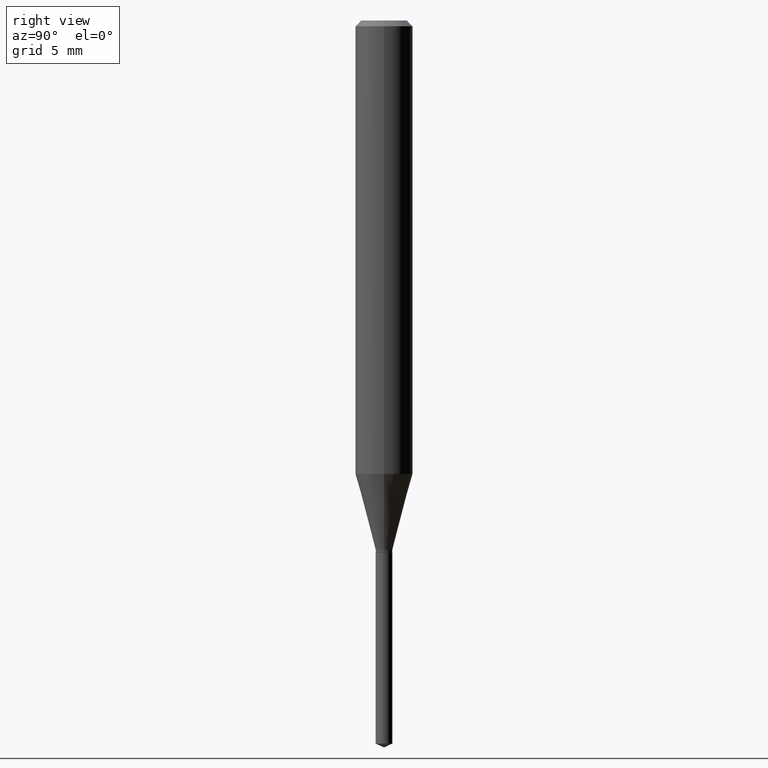
[diagram: clean part render]
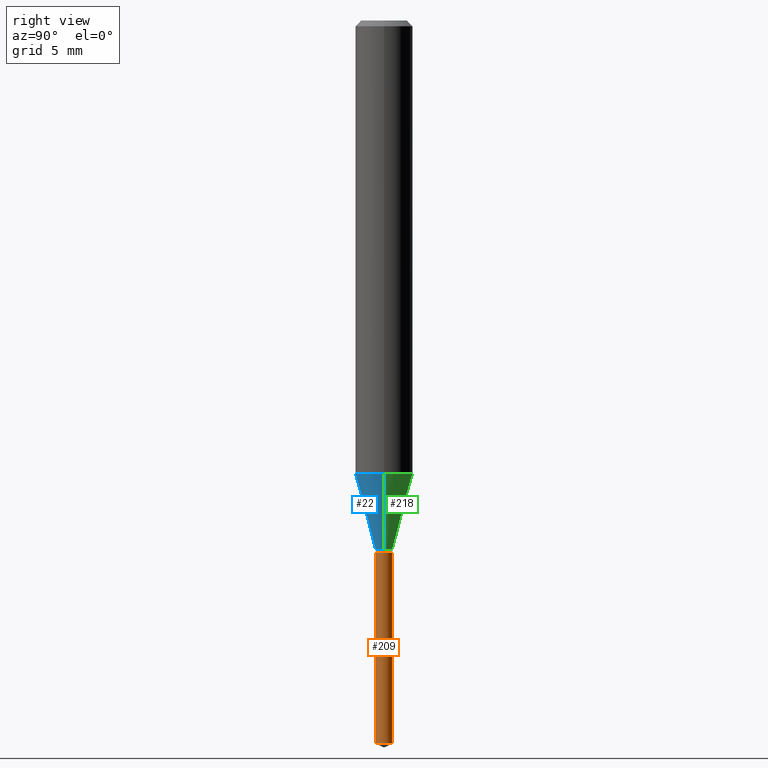
[diagram: same view with three faces highlighted in distinct colors, each labeled with its STEP entity id]
A machine part, right view with three faces highlighted in distinct colors.
Their STEP definitions:

[orange] entity #209 — the highlighted cylindrical surface (edge-blend (fillet) strip) has radius 0.4356 mm, axis along (-0, 0, 1).
#6 = ORIENTED_EDGE ( 'NONE', *, *, #64, .T. ) ;
#10 = VECTOR ( 'NONE', #247, 39.37007874015748143 ) ;
#18 = CARTESIAN_POINT ( 'NONE',  ( 3.639109590007979236E-29, -5.195682445244359530E-15, -1.488102823662641683 ) ) ;
#23 = CARTESIAN_POINT ( 'NONE',  ( 1.218580791828936073E-16, 0.01714999999999617525, -1.094499999999999806 ) ) ;
#25 = EDGE_CURVE ( 'NONE', #46, #85, #487, .T. ) ;
#46 = VERTEX_POINT ( 'NONE', #412 ) ;
#49 = DIRECTION ( 'NONE',  ( -2.445470214571802116E-29, 3.491479321953280158E-15, 1.000000000000000000 ) ) ;
#64 = EDGE_CURVE ( 'NONE', #357, #243, #136, .T. ) ;
#72 = AXIS2_PLACEMENT_3D ( 'NONE', #74, #380, #223 ) ;
#74 = CARTESIAN_POINT ( 'NONE',  ( 2.676565608369631794E-29, -3.821426325363822773E-15, -1.094499999999999806 ) ) ;
#78 = EDGE_LOOP ( 'NONE', ( #350, #6, #245, #112 ) ) ;
#80 = CYLINDRICAL_SURFACE ( 'NONE', #72, 0.01714999999999999858 ) ;
#82 = AXIS2_PLACEMENT_3D ( 'NONE', #280, #49, #346 ) ;
#85 = VERTEX_POINT ( 'NONE', #372 ) ;
#112 = ORIENTED_EDGE ( 'NONE', *, *, #25, .F. ) ;
#125 = AXIS2_PLACEMENT_3D ( 'NONE', #18, #237, #283 ) ;
#136 = LINE ( 'NONE', #367, #10 ) ;
#142 = FACE_OUTER_BOUND ( 'NONE', #78, .T. ) ;
#209 = ADVANCED_FACE ( 'NONE', ( #142 ), #80, .T. ) ;
#223 = DIRECTION ( 'NONE',  ( -6.982962677686266711E-15, -1.000000000000000000, 0.000000000000000000 ) ) ;
#234 = CIRCLE ( 'NONE', #82, 0.01714999999999999858 ) ;
#237 = DIRECTION ( 'NONE',  ( -2.445470214571802116E-29, 3.491479321953280158E-15, 1.000000000000000000 ) ) ;
#243 = VERTEX_POINT ( 'NONE', #23 ) ;
#245 = ORIENTED_EDGE ( 'NONE', *, *, #249, .F. ) ;
#247 = DIRECTION ( 'NONE',  ( -2.445470214571802396E-29, 3.491479321953280158E-15, 1.000000000000000000 ) ) ;
#249 = EDGE_CURVE ( 'NONE', #85, #243, #234, .T. ) ;
#250 = CARTESIAN_POINT ( 'NONE',  ( -1.197578099222926869E-16, -0.01715000000000382191, -1.094499999999999806 ) ) ;
#280 = CARTESIAN_POINT ( 'NONE',  ( 2.676565608369631794E-29, -3.821426325363822773E-15, -1.094499999999999806 ) ) ;
#283 = DIRECTION ( 'NONE',  ( -6.982962677686266711E-15, -1.000000000000000000, 0.000000000000000000 ) ) ;
#314 = EDGE_CURVE ( 'NONE', #46, #357, #409, .T. ) ;
#324 = CARTESIAN_POINT ( 'NONE',  ( 1.218580791828935333E-16, 0.01714999999999479788, -1.488102823662641683 ) ) ;
#346 = DIRECTION ( 'NONE',  ( -6.982962677686266711E-15, -1.000000000000000000, 0.000000000000000000 ) ) ;
#349 = VECTOR ( 'NONE', #408, 39.37007874015748143 ) ;
#350 = ORIENTED_EDGE ( 'NONE', *, *, #314, .T. ) ;
#357 = VERTEX_POINT ( 'NONE', #324 ) ;
#367 = CARTESIAN_POINT ( 'NONE',  ( 1.218580791828839191E-16, 0.01714999999999617525, -1.094499999999999806 ) ) ;
#372 = CARTESIAN_POINT ( 'NONE',  ( -1.197578099222926869E-16, -0.01715000000000382191, -1.094499999999999806 ) ) ;
#380 = DIRECTION ( 'NONE',  ( -2.445470214571802116E-29, 3.491479321953280158E-15, 1.000000000000000000 ) ) ;
#408 = DIRECTION ( 'NONE',  ( -2.445470214571802396E-29, 3.491479321953280158E-15, 1.000000000000000000 ) ) ;
#409 = CIRCLE ( 'NONE', #125, 0.01714999999999999858 ) ;
#412 = CARTESIAN_POINT ( 'NONE',  ( -1.197578099222830234E-16, -0.01715000000000518887, -1.488102823662641683 ) ) ;
#487 = LINE ( 'NONE', #250, #349 ) ;

[blue] entity #22 — the highlighted conical surface has half-angle 15 deg.
#2 = AXIS2_PLACEMENT_3D ( 'NONE', #216, #62, #364 ) ;
#22 = ADVANCED_FACE ( 'NONE', ( #375 ), #418, .T. ) ;
#24 = VECTOR ( 'NONE', #127, 39.37007874015747433 ) ;
#37 = CARTESIAN_POINT ( 'NONE',  ( 2.664093717458087237E-29, -3.803619770535721859E-15, -1.089399999999999924 ) ) ;
#55 = EDGE_LOOP ( 'NONE', ( #115, #340, #88, #276 ) ) ;
#62 = DIRECTION ( 'NONE',  ( -2.445468806185136597E-29, 3.491481338843145583E-15, 1.000000000000000000 ) ) ;
#66 = AXIS2_PLACEMENT_3D ( 'NONE', #37, #263, #228 ) ;
#88 = ORIENTED_EDGE ( 'NONE', *, *, #305, .T. ) ;
#104 = CARTESIAN_POINT ( 'NONE',  ( 0.05905000000000010935, -3.669990553717989210E-15, -0.9330270711628638747 ) ) ;
#110 = CIRCLE ( 'NONE', #66, 0.01714999999999999858 ) ;
#115 = ORIENTED_EDGE ( 'NONE', *, *, #190, .F. ) ;
#121 = VERTEX_POINT ( 'NONE', #104 ) ;
#127 = DIRECTION ( 'NONE',  ( 0.2588190451025213501, 1.565188264969621968E-15, 0.9659258262890682012 ) ) ;
#135 = CARTESIAN_POINT ( 'NONE',  ( 0.01714999999999999858, -3.923377580458041737E-15, -1.089399999999999924 ) ) ;
#158 = CARTESIAN_POINT ( 'NONE',  ( -0.01714999999999999858, -3.689792098432204393E-15, -1.089399999999999924 ) ) ;
#160 = CARTESIAN_POINT ( 'NONE',  ( 0.01714999999999999858, -3.923377580458041737E-15, -1.089399999999999924 ) ) ;
#163 = LINE ( 'NONE', #160, #24 ) ;
#165 = EDGE_CURVE ( 'NONE', #348, #433, #110, .T. ) ;
#178 = CARTESIAN_POINT ( 'NONE',  ( -0.01714999999999999858, -3.681761691352864687E-15, -1.089399999999999924 ) ) ;
#183 = CARTESIAN_POINT ( 'NONE',  ( -0.05905000000000010935, -2.838071122134274797E-15, -0.9330270711628638747 ) ) ;
#190 = EDGE_CURVE ( 'NONE', #348, #233, #271, .T. ) ;
#199 = CARTESIAN_POINT ( 'NONE',  ( 2.281688597855063400E-29, -3.257646607600614684E-15, -0.9330270711628638747 ) ) ;
#216 = CARTESIAN_POINT ( 'NONE',  ( 2.664093717458087237E-29, -3.803619770535721859E-15, -1.089399999999999924 ) ) ;
#228 = DIRECTION ( 'NONE',  ( 1.000000000000000000, -6.982962677686279332E-15, 0.000000000000000000 ) ) ;
#233 = VERTEX_POINT ( 'NONE', #183 ) ;
#263 = DIRECTION ( 'NONE',  ( -2.445468806185136597E-29, 3.491481338843145583E-15, 1.000000000000000000 ) ) ;
#271 = LINE ( 'NONE', #178, #278 ) ;
#276 = ORIENTED_EDGE ( 'NONE', *, *, #320, .F. ) ;
#278 = VECTOR ( 'NONE', #428, 39.37007874015747433 ) ;
#286 = DIRECTION ( 'NONE',  ( -2.445468806185136597E-29, 3.491481338843145583E-15, 1.000000000000000000 ) ) ;
#305 = EDGE_CURVE ( 'NONE', #433, #121, #163, .T. ) ;
#320 = EDGE_CURVE ( 'NONE', #233, #121, #358, .T. ) ;
#340 = ORIENTED_EDGE ( 'NONE', *, *, #165, .T. ) ;
#348 = VERTEX_POINT ( 'NONE', #158 ) ;
#358 = CIRCLE ( 'NONE', #386, 0.05905000000000010935 ) ;
#364 = DIRECTION ( 'NONE',  ( 1.000000000000000000, -6.982962677686279332E-15, 0.000000000000000000 ) ) ;
#375 = FACE_OUTER_BOUND ( 'NONE', #55, .T. ) ;
#386 = AXIS2_PLACEMENT_3D ( 'NONE', #199, #286, #476 ) ;
#418 = CONICAL_SURFACE ( 'NONE', #2, 0.01714999999999999858, 0.2617993877991500740 ) ;
#428 = DIRECTION ( 'NONE',  ( -0.2588190451025213501, 5.211531920934551042E-15, 0.9659258262890682012 ) ) ;
#433 = VERTEX_POINT ( 'NONE', #135 ) ;
#476 = DIRECTION ( 'NONE',  ( 1.000000000000000000, -6.982962677686267499E-15, 0.000000000000000000 ) ) ;

[green] entity #218 — the highlighted conical surface has half-angle 15 deg.
#9 = DIRECTION ( 'NONE',  ( -2.445468806185136597E-29, 3.491481338843145583E-15, 1.000000000000000000 ) ) ;
#24 = VECTOR ( 'NONE', #127, 39.37007874015747433 ) ;
#44 = DIRECTION ( 'NONE',  ( 1.000000000000000000, -6.982962677686279332E-15, 0.000000000000000000 ) ) ;
#53 = ORIENTED_EDGE ( 'NONE', *, *, #238, .T. ) ;
#59 = AXIS2_PLACEMENT_3D ( 'NONE', #451, #141, #101 ) ;
#90 = CONICAL_SURFACE ( 'NONE', #323, 0.01714999999999999858, 0.2617993877991500740 ) ;
#101 = DIRECTION ( 'NONE',  ( 1.000000000000000000, -6.982962677686267499E-15, 0.000000000000000000 ) ) ;
#104 = CARTESIAN_POINT ( 'NONE',  ( 0.05905000000000010935, -3.669990553717989210E-15, -0.9330270711628638747 ) ) ;
#111 = DIRECTION ( 'NONE',  ( -2.445468806185136597E-29, 3.491481338843145583E-15, 1.000000000000000000 ) ) ;
#120 = EDGE_CURVE ( 'NONE', #121, #233, #302, .T. ) ;
#121 = VERTEX_POINT ( 'NONE', #104 ) ;
#127 = DIRECTION ( 'NONE',  ( 0.2588190451025213501, 1.565188264969621968E-15, 0.9659258262890682012 ) ) ;
#135 = CARTESIAN_POINT ( 'NONE',  ( 0.01714999999999999858, -3.923377580458041737E-15, -1.089399999999999924 ) ) ;
#141 = DIRECTION ( 'NONE',  ( -2.445468806185136597E-29, 3.491481338843145583E-15, 1.000000000000000000 ) ) ;
#158 = CARTESIAN_POINT ( 'NONE',  ( -0.01714999999999999858, -3.689792098432204393E-15, -1.089399999999999924 ) ) ;
#160 = CARTESIAN_POINT ( 'NONE',  ( 0.01714999999999999858, -3.923377580458041737E-15, -1.089399999999999924 ) ) ;
#163 = LINE ( 'NONE', #160, #24 ) ;
#178 = CARTESIAN_POINT ( 'NONE',  ( -0.01714999999999999858, -3.681761691352864687E-15, -1.089399999999999924 ) ) ;
#179 = FACE_OUTER_BOUND ( 'NONE', #460, .T. ) ;
#183 = CARTESIAN_POINT ( 'NONE',  ( -0.05905000000000010935, -2.838071122134274797E-15, -0.9330270711628638747 ) ) ;
#190 = EDGE_CURVE ( 'NONE', #348, #233, #271, .T. ) ;
#198 = ORIENTED_EDGE ( 'NONE', *, *, #305, .F. ) ;
#218 = ADVANCED_FACE ( 'NONE', ( #179 ), #90, .T. ) ;
#233 = VERTEX_POINT ( 'NONE', #183 ) ;
#238 = EDGE_CURVE ( 'NONE', #433, #348, #437, .T. ) ;
#271 = LINE ( 'NONE', #178, #278 ) ;
#278 = VECTOR ( 'NONE', #428, 39.37007874015747433 ) ;
#302 = CIRCLE ( 'NONE', #59, 0.05905000000000010935 ) ;
#305 = EDGE_CURVE ( 'NONE', #433, #121, #163, .T. ) ;
#311 = ORIENTED_EDGE ( 'NONE', *, *, #120, .F. ) ;
#323 = AXIS2_PLACEMENT_3D ( 'NONE', #459, #111, #44 ) ;
#337 = CARTESIAN_POINT ( 'NONE',  ( 2.664093717458087237E-29, -3.803619770535721859E-15, -1.089399999999999924 ) ) ;
#348 = VERTEX_POINT ( 'NONE', #158 ) ;
#393 = AXIS2_PLACEMENT_3D ( 'NONE', #337, #9, #441 ) ;
#428 = DIRECTION ( 'NONE',  ( -0.2588190451025213501, 5.211531920934551042E-15, 0.9659258262890682012 ) ) ;
#433 = VERTEX_POINT ( 'NONE', #135 ) ;
#437 = CIRCLE ( 'NONE', #393, 0.01714999999999999858 ) ;
#441 = DIRECTION ( 'NONE',  ( 1.000000000000000000, -6.982962677686279332E-15, 0.000000000000000000 ) ) ;
#451 = CARTESIAN_POINT ( 'NONE',  ( 2.281688597855063400E-29, -3.257646607600614684E-15, -0.9330270711628638747 ) ) ;
#459 = CARTESIAN_POINT ( 'NONE',  ( 2.664093717458087237E-29, -3.803619770535721859E-15, -1.089399999999999924 ) ) ;
#460 = EDGE_LOOP ( 'NONE', ( #53, #463, #311, #198 ) ) ;
#463 = ORIENTED_EDGE ( 'NONE', *, *, #190, .T. ) ;